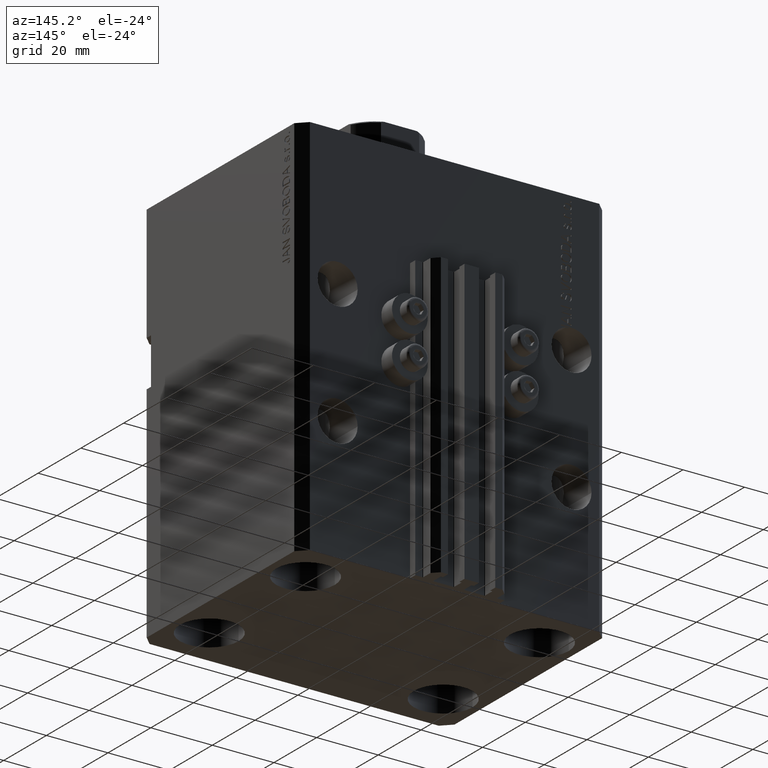
[diagram: clean part render]
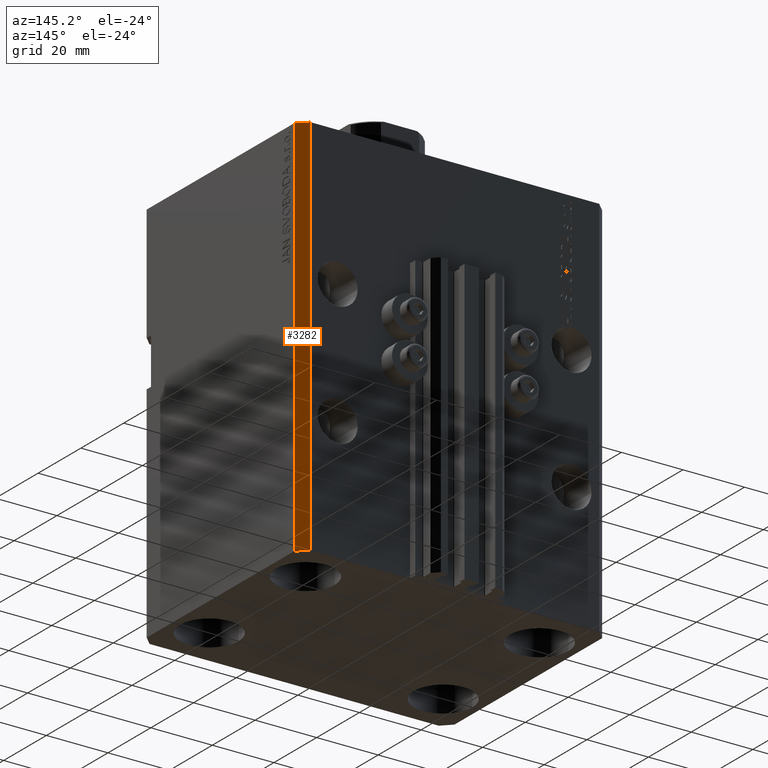
[diagram: same view with one face highlighted and labeled with its STEP entity id]
A machine part, auxiliary view. The second image highlights one B-rep face of the part: STEP entity #3282.
In plain terms, the highlighted planar face has unit normal (0.7071, 0.7071, 0).
Its self-contained STEP definition (entity closure, byte-faithful):
#109 = ORIENTED_EDGE ( 'NONE', *, *, #46819, .F. ) ;
#1189 = CARTESIAN_POINT ( 'NONE',  ( 50.00000000000051870, 34.49999999999995026, -125.0000000000000000 ) ) ;
#3282 = ADVANCED_FACE ( 'NONE', ( #38443 ), #19457, .T. ) ;
#7058 = DIRECTION ( 'NONE',  ( 0.000000000000000000, 0.000000000000000000, 1.000000000000000000 ) ) ;
#7300 = LINE ( 'NONE', #18273, #20486 ) ;
#9305 = EDGE_CURVE ( 'NONE', #23070, #19665, #10302, .T. ) ;
#10302 = LINE ( 'NONE', #44176, #28931 ) ;
#10650 = LINE ( 'NONE', #28713, #30235 ) ;
#11736 = ORIENTED_EDGE ( 'NONE', *, *, #15943, .T. ) ;
#15221 = ORIENTED_EDGE ( 'NONE', *, *, #9305, .F. ) ;
#15943 = EDGE_CURVE ( 'NONE', #19468, #23136, #7300, .T. ) ;
#16518 = DIRECTION ( 'NONE',  ( 0.7071067811865588970, 0.7071067811865361374, -0.000000000000000000 ) ) ;
#17627 = DIRECTION ( 'NONE',  ( 0.000000000000000000, 0.000000000000000000, 1.000000000000000000 ) ) ;
#18273 = CARTESIAN_POINT ( 'NONE',  ( 47.00000000000056843, 37.49999999999999289, -125.0000000000000000 ) ) ;
#19457 = PLANE ( 'NONE',  #24065 ) ;
#19468 = VERTEX_POINT ( 'NONE', #32347 ) ;
#19665 = VERTEX_POINT ( 'NONE', #30628 ) ;
#20486 = VECTOR ( 'NONE', #7058, 1000.000000000000000 ) ;
#21648 = DIRECTION ( 'NONE',  ( -0.7071067811865361374, 0.7071067811865588970, 0.000000000000000000 ) ) ;
#22972 = EDGE_LOOP ( 'NONE', ( #109, #15221, #39814, #11736 ) ) ;
#23070 = VERTEX_POINT ( 'NONE', #43703 ) ;
#23136 = VERTEX_POINT ( 'NONE', #25187 ) ;
#24065 = AXIS2_PLACEMENT_3D ( 'NONE', #1189, #16518, #45282 ) ;
#25187 = CARTESIAN_POINT ( 'NONE',  ( 47.00000000000056843, 37.49999999999999289, 0.000000000000000000 ) ) ;
#27459 = VECTOR ( 'NONE', #29960, 1000.000000000000114 ) ;
#28713 = CARTESIAN_POINT ( 'NONE',  ( 50.00000000000051870, 34.49999999999995026, -125.0000000000000000 ) ) ;
#28931 = VECTOR ( 'NONE', #17627, 1000.000000000000000 ) ;
#29960 = DIRECTION ( 'NONE',  ( -0.7071067811865361374, 0.7071067811865588970, 0.000000000000000000 ) ) ;
#30235 = VECTOR ( 'NONE', #21648, 1000.000000000000114 ) ;
#30628 = CARTESIAN_POINT ( 'NONE',  ( 50.00000000000051870, 34.49999999999995026, 0.000000000000000000 ) ) ;
#31006 = EDGE_CURVE ( 'NONE', #23070, #19468, #10650, .T. ) ;
#32347 = CARTESIAN_POINT ( 'NONE',  ( 47.00000000000056843, 37.49999999999999289, -125.0000000000000000 ) ) ;
#32894 = LINE ( 'NONE', #37501, #27459 ) ;
#37501 = CARTESIAN_POINT ( 'NONE',  ( 50.00000000000051870, 34.49999999999995026, 0.000000000000000000 ) ) ;
#38443 = FACE_OUTER_BOUND ( 'NONE', #22972, .T. ) ;
#39814 = ORIENTED_EDGE ( 'NONE', *, *, #31006, .T. ) ;
#43703 = CARTESIAN_POINT ( 'NONE',  ( 50.00000000000051870, 34.49999999999995026, -125.0000000000000000 ) ) ;
#44176 = CARTESIAN_POINT ( 'NONE',  ( 50.00000000000051870, 34.49999999999995026, -125.0000000000000000 ) ) ;
#45282 = DIRECTION ( 'NONE',  ( -0.7071067811865361374, 0.7071067811865588970, 0.000000000000000000 ) ) ;
#46819 = EDGE_CURVE ( 'NONE', #19665, #23136, #32894, .T. ) ;